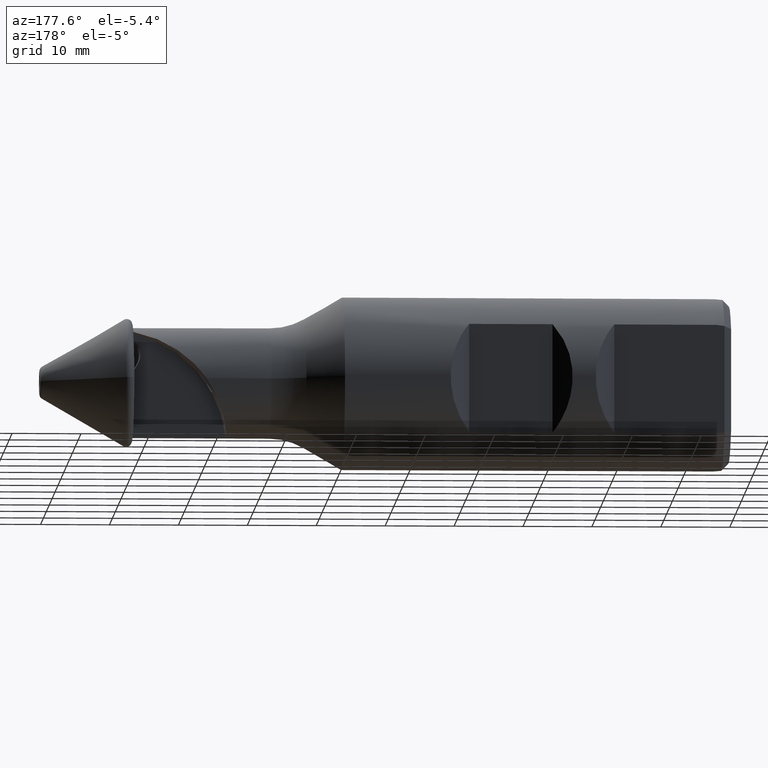
[diagram: clean part render]
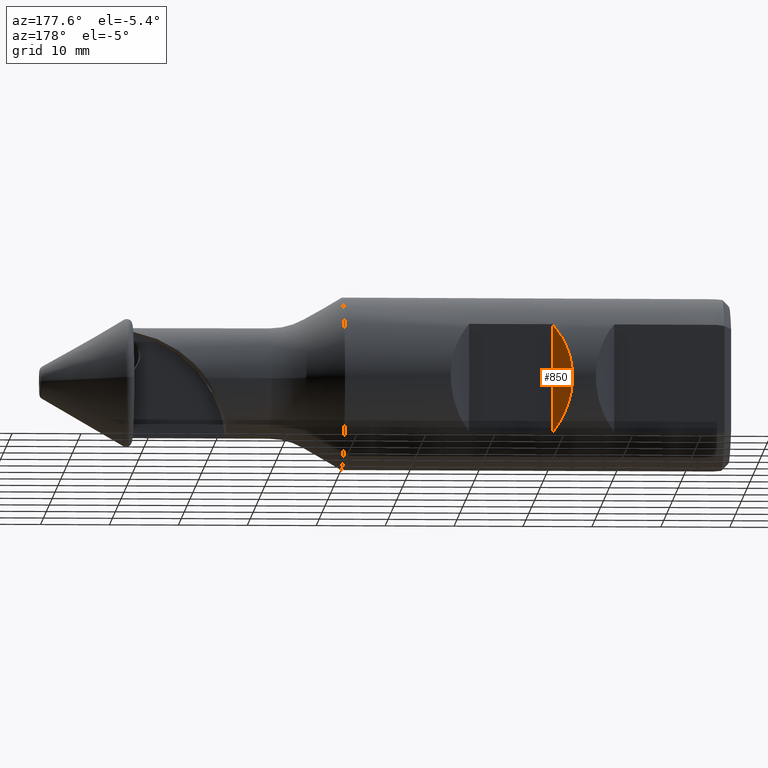
[diagram: same view with one face highlighted and labeled with its STEP entity id]
A machine part, auxiliary view. The second image highlights one B-rep face of the part: STEP entity #850.
In plain terms, the highlighted planar face has unit normal (0.7071, 0.7071, 0).
Its self-contained STEP definition (entity closure, byte-faithful):
#11 = VERTEX_POINT ( 'NONE', #372 ) ;
#19 = VECTOR ( 'NONE', #1091, 1000.000000000000000 ) ;
#40 = ORIENTED_EDGE ( 'NONE', *, *, #197, .T. ) ;
#85 = LINE ( 'NONE', #942, #19 ) ;
#109 = CARTESIAN_POINT ( 'NONE',  ( -80.95000000000000300, 9.699999999999979700, 7.884161337770830600 ) ) ;
#197 = EDGE_CURVE ( 'NONE', #767, #11, #85, .T. ) ;
#282 =( BOUNDED_CURVE ( )  B_SPLINE_CURVE ( 3, ( #754, #862, #735, #732 ),
 .UNSPECIFIED., .F., .F. ) 
 B_SPLINE_CURVE_WITH_KNOTS ( ( 4, 4 ),
 ( 2.459095336313819900, 3.824089970865766700 ),
 .UNSPECIFIED. ) 
 CURVE ( )  GEOMETRIC_REPRESENTATION_ITEM ( )  RATIONAL_B_SPLINE_CURVE ( ( 1.000000000000000000, 0.8506666666666659000, 0.8506666666666659000, 1.000000000000000000 ) ) 
 REPRESENTATION_ITEM ( '' )  );
#346 = AXIS2_PLACEMENT_3D ( 'NONE', #1057, #809, #359 ) ;
#359 = DIRECTION ( 'NONE',  ( -0.7071067811865474600, 0.7071067811865474600, 0.0000000000000000000 ) ) ;
#372 = CARTESIAN_POINT ( 'NONE',  ( -80.95000000000000300, 9.699999999999979700, -7.884161337770830600 ) ) ;
#456 = EDGE_CURVE ( 'NONE', #767, #11, #282, .T. ) ;
#626 = EDGE_LOOP ( 'NONE', ( #863, #40 ) ) ;
#726 = FACE_OUTER_BOUND ( 'NONE', #626, .T. ) ;
#732 = CARTESIAN_POINT ( 'NONE',  ( -80.95000000000000300, 9.699999999999979700, -7.884161337770830600 ) ) ;
#735 = CARTESIAN_POINT ( 'NONE',  ( -84.84717868338560700, 13.59717868338558100, -3.089404912919606200 ) ) ;
#754 = CARTESIAN_POINT ( 'NONE',  ( -80.95000000000000300, 9.699999999999979700, 7.884161337770830600 ) ) ;
#767 = VERTEX_POINT ( 'NONE', #109 ) ;
#809 = DIRECTION ( 'NONE',  ( 0.7071067811865475700, 0.7071067811865475700, 0.0000000000000000000 ) ) ;
#850 = ADVANCED_FACE ( 'NONE', ( #726 ), #928, .T. ) ;
#862 = CARTESIAN_POINT ( 'NONE',  ( -84.84717868338560700, 13.59717868338558100, 3.089404912919606200 ) ) ;
#863 = ORIENTED_EDGE ( 'NONE', *, *, #456, .F. ) ;
#928 = PLANE ( 'NONE',  #346 ) ;
#942 = CARTESIAN_POINT ( 'NONE',  ( -80.95000000000000300, 9.699999999999990400, 10.00000000000000000 ) ) ;
#1057 = CARTESIAN_POINT ( 'NONE',  ( -80.95000000000000300, 9.699999999999990400, 10.00000000000000000 ) ) ;
#1091 = DIRECTION ( 'NONE',  ( 0.0000000000000000000, 0.0000000000000000000, -1.000000000000000000 ) ) ;